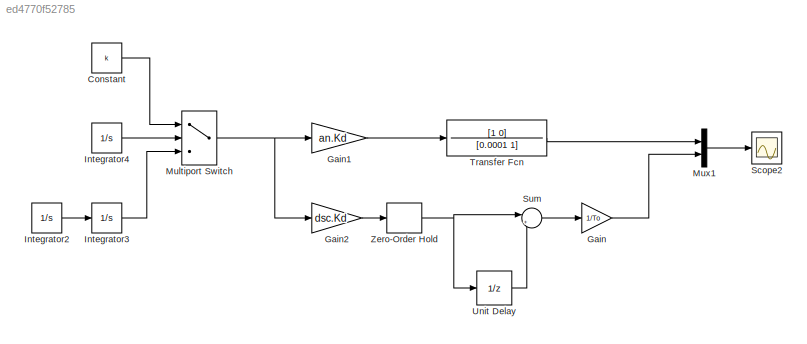
MODEL slx_ed4770f52785
KIND model
CONFIG AbsTol = auto
CONFIG EnableMultiTasking = off
CONFIG FixedStep = To/100
CONFIG MaxStep = To/100
CONFIG MinStep = auto
CONFIG RelTol = 1e-3
CONFIG SampleTimeConstraint = Unconstrained
CONFIG SolverName = VariableStepAuto
CONFIG StartTime = 0.0
CONFIG StopTime = Tmdl
BLOCK [Constant] Constant
  Value = k
BLOCK [Gain] Gain
  Gain = 1/To
BLOCK [Gain] Gain1
  Gain = an.Kd
BLOCK [Gain] Gain2
  Gain = dsc.Kd
BLOCK [Integrator] Integrator2
  InitialCondition = 1
  Ports = [1, 1]
BLOCK [Integrator] Integrator3
  Ports = [1, 1]
BLOCK [Integrator] Integrator4
  InitialCondition = 1
  Ports = [1, 1]
BLOCK [MultiPortSwitch] Multiport Switch
  InputSameDT = off
  Inputs = 2
  Ports = [3, 1]
  SaturateOnIntegerOverflow = off
BLOCK [Mux] Mux1
  DisplayOption = bar
  Inputs = 2
  Ports = [2, 1]
BLOCK [Scope] Scope2
  Floating = off
  NumInputPorts = 1
  Ports = [1]
  ScopeSpecificationString = Simulink.scopes.TimeScopeBlockCfg('CurrentConfiguration', extmgr.ConfigurationSet(extmgr.Configuration('Core','General UI',true,'FigureColor',[1 1 1]),extmgr.Configuration('Core','Source UI',true),extmgr.Configuration('Sources','WiredSimulink',true,'DataLogging',true,'DataLoggingSaveFormat','Array','DataLoggingVariableName','y'),extmgr.Configuration('Visuals','Time Domain',true,'SerializedDisplays...<+1617ch>
BLOCK [Sum] Sum
  Inputs = |+-
  Ports = [2, 1]
BLOCK [TransferFcn] Transfer Fcn
  Denominator = [0.0001 1]
  Numerator = [1 0]
BLOCK [UnitDelay] Unit Delay
  HasFrameUpgradeWarning = on
  SampleTime = -1
BLOCK [ZeroOrderHold] Zero-Order Hold
  SampleTime = To
LINE Constant:1 -> Multiport Switch:1
LINE Gain1:1 -> Transfer Fcn:1
LINE Gain2:1 -> Zero-Order Hold:1
LINE Gain:1 -> Mux1:2
LINE Integrator2:1 -> Integrator3:1
LINE Integrator3:1 -> Multiport Switch:3
LINE Integrator4:1 -> Multiport Switch:2
NET Multiport Switch:1 -> Gain1:1, Gain2:1
LINE Mux1:1 -> Scope2:1
LINE Sum:1 -> Gain:1
LINE Transfer Fcn:1 -> Mux1:1
LINE Unit Delay:1 -> Sum:2
NET Zero-Order Hold:1 -> Sum:1, Unit Delay:1
note: NET lines group one-source signal fan-out (src -> all destinations, sorted); 1:1 wires keep LINE
